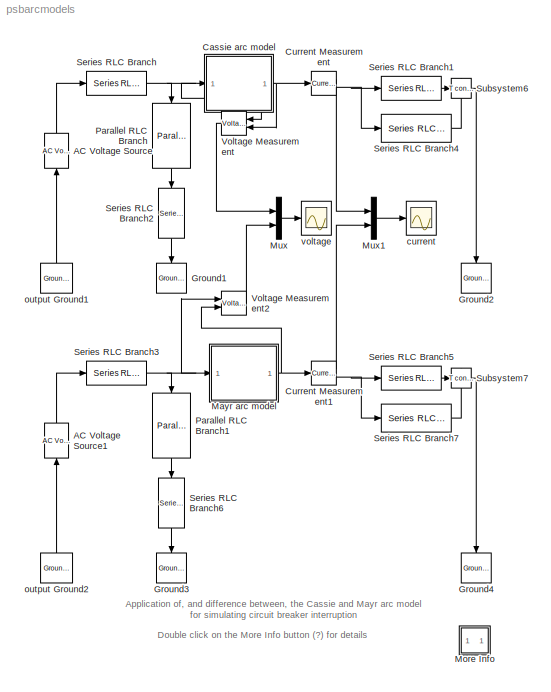
MODEL psbarcmodels
KIND model
BLOCK [Reference] AC Voltage Source  REF=powerlib2/Electrical\nSources/AC Voltage Source
  A = 59196
  F = 60
  P = 90
  PSBOutputType = 1
  Ports = [1, 1]
  SourceBlock = powerlib2/Electrical\nSources/AC Voltage Source
  SourceType = AC Voltage Source
  Tag = PoWeRsYsTeMbLoCk
  mesure = None
  stime = 0
BLOCK [Reference] AC Voltage Source1  REF=powerlib2/Electrical\nSources/AC Voltage Source
  A = 59196
  F = 60
  P = 90
  PSBOutputType = 1
  Ports = [1, 1]
  SourceBlock = powerlib2/Electrical\nSources/AC Voltage Source
  SourceType = AC Voltage Source
  Tag = PoWeRsYsTeMbLoCk
  mesure = None
  stime = 0
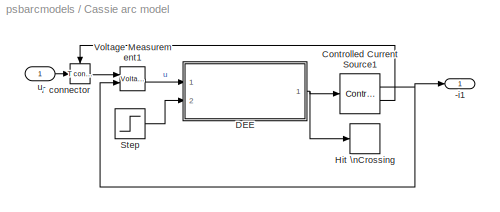
BLOCK [SubSystem] Cassie arc model
  AncestorBlock = arc_model/Cassie arc model
  MaskCallbackString = |||
  MaskDescription = The Cassie arc model with a constant time parameter tau and a constant arc voltage Uc: dlng/dt=1/tau*((u^2/Uc^2)-1.
  MaskDisplay = plot(-15,10,115,90,[-15,15],[50,50],[85,115],[50,50],[15,15,25,25,15],[55,45,45,55,55],[75,75,85,85,75],[55,45,45,55,55],[25,75],[50,70])
  MaskEnableString = on,on,on,on
  MaskHelp = The Cassie arc model with a constant time parameter tau and a constant arc voltage Uc: dlng/dt=1/tau*((u^2/Uc^2)-1.\n\nThe initial conductance of the arc g(0) can be altered. Furthermore, the time at which the contact separation of the circuit breaker takes place can be specified. Until that time the arc model behaves as a conductance with the value g(0).
  MaskIconFrame = off
  MaskIconOpaque = on
  MaskIconRotate = port
  MaskIconUnits = autoscale
  MaskPromptString = tau [s]|Uc [V]|g(0) [S]|circuit breaker contact separation starts at [s]
  MaskStyleString = edit,edit,edit,edit
  MaskTabNameString = ,,,
  MaskToolTipString = on,on,on,on
  MaskTunableValueString = on,on,on,on
  MaskType = Cassie arc model
  MaskValueString = 1.2e-6|3850|1.e4|.02
  MaskVarAliasString = ,,,
  MaskVariables = tau=@1;Uc=@2;x0=@3;cb_trip=@4;
  MaskVisibilityString = on,on,on,on
  MinAlgLoopOccurrences = off
  Ports = [1, 1]
  RTWSystemCode = Auto
  TreatAsAtomicUnit = off
BLOCK [Outport] Cassie arc model/-i1
  IconDisplay = Port number
BLOCK [Reference] Cassie arc model/Controlled Current Source1  REF=powerlib2/Electrical\nSources/Controlled Current Source
  PSBOutputType = 11
  Ports = [1, 2]
  SourceBlock = powerlib2/Electrical\nSources/Controlled Current Source
  SourceType = Controlled Current Source
  Tag = PoWeRsYsTeMbLoCk
  freq = 0
  ia = 0
  initsrc = on
  iph = 0
  mesure = None
  srctyp = AC
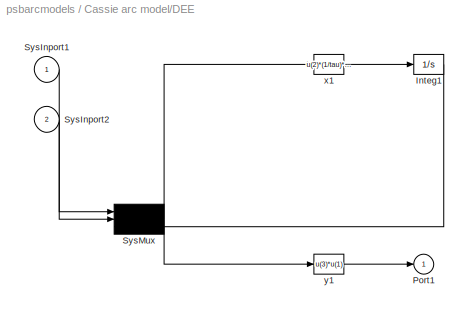
BLOCK [SubSystem] Cassie arc model/DEE
  MaskDisplay = disp('Cassie arc model')
  MaskIconFrame = on
  MaskIconOpaque = on
  MaskIconRotate = none
  MaskIconUnits = autoscale
  MaskType = Differential Equation Editor (DEE)
  MinAlgLoopOccurrences = off
  OpenFcn = diffeqed
  Ports = [2, 1]
  RTWSystemCode = Auto
  TreatAsAtomicUnit = off
BLOCK [Integrator] Cassie arc model/DEE/Integ1
  InitialCondition = x0
  Ports = [1, 1]
  ZeroCross = off
BLOCK [Outport] Cassie arc model/DEE/Port1
  IconDisplay = Port number
  InitialOutput = 0
BLOCK [Inport] Cassie arc model/DEE/SysInport1
  IconDisplay = Port number
  LatchInput = off
  Port = 1
BLOCK [Inport] Cassie arc model/DEE/SysInport2
  IconDisplay = Port number
  LatchInput = off
  Port = 2
BLOCK [Mux] Cassie arc model/DEE/SysMux
  Inputs = 3
  Ports = [3, 1]
BLOCK [Fcn] Cassie arc model/DEE/x1
  Expr = u(2)*(1/tau)*((u(3)*u(1)^2)/(Uc^2)-u(3))
BLOCK [Fcn] Cassie arc model/DEE/y1
  Expr = u(3)*u(1)
BLOCK [HitCross] Cassie arc model/Hit \nCrossing
  HitCrossingDirection = either
  Ports = [1]
  ShowOutputPort = off
  ZeroCross = off
BLOCK [Step] Cassie arc model/Step
  SampleTime = 0
  Time = cb_trip
  ZeroCross = off
BLOCK [Reference] Cassie arc model/T connector  REF=powerlib2/Connectors/T connector
  PSBOutputType = 1
  Ports = [1, 1, 1]
  SourceBlock = powerlib2/Connectors/T connector
  SourceType = Bus Bar
  Tag = PoWeRsYsTeMbLoCk
BLOCK [Reference] Cassie arc model/Voltage Measurement1  REF=powerlib2/Measurements/Voltage Measurement
  OutputType = Magnitude
  PSBOutputType = 0
  PSBequivalent = 0
  PhasorSimulation = off
  Ports = [2, 1]
  SourceBlock = powerlib2/Measurements/Voltage Measurement
  SourceType = Voltage Measurement
  Tag = PoWeRsYsTeMmEaSuReMeNt
BLOCK [Inport] Cassie arc model/u
  IconDisplay = Port number
  LatchInput = off
  Port = 1
BLOCK [Reference] Current Measurement  REF=powerlib2/Measurements/Current Measurement
  OutputType = Magnitude
  PSBOutputType = 01
  PSBequivalent = 0
  PhasorSimulation = off
  Ports = [1, 2]
  SourceBlock = powerlib2/Measurements/Current Measurement
  SourceType = Current Measurement
  Tag = PoWeRsYsTeMmEaSuReMeNt
BLOCK [Reference] Current Measurement1  REF=powerlib2/Measurements/Current Measurement
  OutputType = Magnitude
  PSBOutputType = 01
  PSBequivalent = 0
  PhasorSimulation = off
  Ports = [1, 2]
  SourceBlock = powerlib2/Measurements/Current Measurement
  SourceType = Current Measurement
  Tag = PoWeRsYsTeMmEaSuReMeNt
BLOCK [Reference] Ground1  REF=powerlib2/Connectors/Ground (input)
  Ports = [1]
  SourceBlock = powerlib2/Connectors/Ground (input)
  SourceType = Ground
  Tag = PoWeRsYsTeMbLoCk
BLOCK [Reference] Ground2  REF=powerlib2/Connectors/Ground (input)
  Ports = [1]
  SourceBlock = powerlib2/Connectors/Ground (input)
  SourceType = Ground
  Tag = PoWeRsYsTeMbLoCk
BLOCK [Reference] Ground3  REF=powerlib2/Connectors/Ground (input)
  Ports = [1]
  SourceBlock = powerlib2/Connectors/Ground (input)
  SourceType = Ground
  Tag = PoWeRsYsTeMbLoCk
BLOCK [Reference] Ground4  REF=powerlib2/Connectors/Ground (input)
  Ports = [1]
  SourceBlock = powerlib2/Connectors/Ground (input)
  SourceType = Ground
  Tag = PoWeRsYsTeMbLoCk
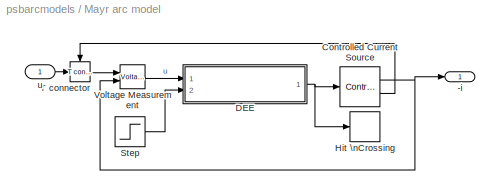
BLOCK [SubSystem] Mayr arc model
  AncestorBlock = arc_model/Mayr arc model
  MaskCallbackString = |||
  MaskDescription = The Mayr arc model with a constant time parameter tau and constant cooling power P: dlng/dt=1/tau*((ui/P)-1).
  MaskDisplay = plot(-15,10,115,90,[-15,15],[50,50],[85,115],[50,50],[15,15,25,25,15],[55,45,45,55,55],[75,75,85,85,75],[55,45,45,55,55],[25,75],[50,70])
  MaskEnableString = on,on,on,on
  MaskHelp = The Mayr arc model with a constant time parameter tau and constant cooling power P: dlng/dt=1/tau*((ui/P)-1).\n\nThe initial conductance of the arc g(0) can be altered. Furthermore, the time at which the contact separation of the circuit breaker takes place can be specified. Until that time the arc model behaves as a conductance with the value g(0).
  MaskIconFrame = off
  MaskIconOpaque = on
  MaskIconRotate = port
  MaskIconUnits = autoscale
  MaskPromptString = tau [s]|P [W]|g(0) [S]|circuit breaker contact separation starts at [s]
  MaskStyleString = edit,edit,edit,edit
  MaskTabNameString = ,,,
  MaskToolTipString = on,on,on,on
  MaskTunableValueString = on,on,on,on
  MaskType = Mayr arc model
  MaskValueString = 0.3e-6|30900|1.e4|.02
  MaskVarAliasString = ,,,
  MaskVariables = tau=@1;P=@2;x0=@3;cb_trip=@4;
  MaskVisibilityString = on,on,on,on
  MinAlgLoopOccurrences = off
  Ports = [1, 1]
  RTWSystemCode = Auto
  TreatAsAtomicUnit = off
BLOCK [Outport] Mayr arc model/-i
  IconDisplay = Port number
BLOCK [Reference] Mayr arc model/Controlled Current Source  REF=powerlib2/Electrical\nSources/Controlled Current Source
  PSBOutputType = 11
  Ports = [1, 2]
  SourceBlock = powerlib2/Electrical\nSources/Controlled Current Source
  SourceType = Controlled Current Source
  Tag = PoWeRsYsTeMbLoCk
  freq = 0
  ia = 0
  initsrc = on
  iph = 0
  mesure = None
  srctyp = AC
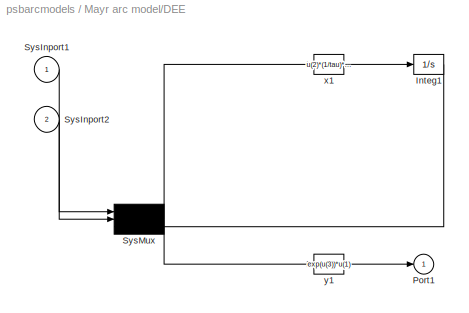
BLOCK [SubSystem] Mayr arc model/DEE
  MaskDisplay = disp('Mayr arc model')
  MaskIconFrame = on
  MaskIconOpaque = on
  MaskIconRotate = none
  MaskIconUnits = autoscale
  MaskType = Differential Equation Editor (DEE)
  MinAlgLoopOccurrences = off
  OpenFcn = diffeqed
  Ports = [2, 1]
  RTWSystemCode = Auto
  TreatAsAtomicUnit = off
BLOCK [Integrator] Mayr arc model/DEE/Integ1
  InitialCondition = log(x0)
  Ports = [1, 1]
  ZeroCross = off
BLOCK [Outport] Mayr arc model/DEE/Port1
  IconDisplay = Port number
  InitialOutput = 0
BLOCK [Inport] Mayr arc model/DEE/SysInport1
  IconDisplay = Port number
  LatchInput = off
  Port = 1
BLOCK [Inport] Mayr arc model/DEE/SysInport2
  IconDisplay = Port number
  LatchInput = off
  Port = 2
BLOCK [Mux] Mayr arc model/DEE/SysMux
  Inputs = 3
  Ports = [3, 1]
BLOCK [Fcn] Mayr arc model/DEE/x1
  Expr = u(2)*(1/tau)*((exp(u(3))*u(1)^2)/P-1)
BLOCK [Fcn] Mayr arc model/DEE/y1
  Expr = exp(u(3))*u(1)
BLOCK [HitCross] Mayr arc model/Hit \nCrossing
  HitCrossingDirection = either
  Ports = [1]
  ShowOutputPort = off
  ZeroCross = off
BLOCK [Step] Mayr arc model/Step
  SampleTime = 0
  Time = cb_trip
  ZeroCross = off
BLOCK [Reference] Mayr arc model/T connector  REF=powerlib2/Connectors/T connector
  PSBOutputType = 1
  Ports = [1, 1, 1]
  SourceBlock = powerlib2/Connectors/T connector
  SourceType = Bus Bar
  Tag = PoWeRsYsTeMbLoCk
BLOCK [Reference] Mayr arc model/Voltage Measurement  REF=powerlib2/Measurements/Voltage Measurement
  OutputType = Magnitude
  PSBOutputType = 0
  PSBequivalent = 0
  PhasorSimulation = off
  Ports = [2, 1]
  SourceBlock = powerlib2/Measurements/Voltage Measurement
  SourceType = Voltage Measurement
  Tag = PoWeRsYsTeMmEaSuReMeNt
BLOCK [Inport] Mayr arc model/u
  IconDisplay = Port number
  LatchInput = off
  Port = 1
BLOCK [SubSystem] More Info
  MaskDisplay = disp('?')
  MaskIconFrame = on
  MaskIconOpaque = on
  MaskIconRotate = none
  MaskIconUnits = autoscale
  MinAlgLoopOccurrences = off
  Ports = []
  RTWSystemCode = Auto
  TreatAsAtomicUnit = off
BLOCK [Mux] Mux
  DisplayOption = bar
  Inputs = 2
  Ports = [2, 1]
BLOCK [Mux] Mux1
  DisplayOption = bar
  Inputs = 2
  Ports = [2, 1]
BLOCK [Reference] Parallel RLC Branch  REF=powerlib2/Elements/Parallel RLC Branch
  PSBOutputType = 1
  Ports = [1, 1]
  SourceBlock = powerlib2/Elements/Parallel RLC Branch
  SourceType = Parallel RLC Branch
  Tag = PoWeRsYsTeMbLoCk
  a = 29.8
  b = 5.28e-3
  c = 0
  mesure = None
BLOCK [Reference] Parallel RLC Branch1  REF=powerlib2/Elements/Parallel RLC Branch
  PSBOutputType = 1
  Ports = [1, 1]
  SourceBlock = powerlib2/Elements/Parallel RLC Branch
  SourceType = Parallel RLC Branch
  Tag = PoWeRsYsTeMbLoCk
  a = 29.8
  b = 5.28e-3
  c = 0
  mesure = None
BLOCK [Reference] Series RLC Branch  REF=powerlib2/Elements/Series RLC Branch
  PSBOutputType = 1
  Ports = [1, 1]
  SourceBlock = powerlib2/Elements/Series RLC Branch
  SourceType = Series RLC Branch
  Tag = PoWeRsYsTeMbLoCk
  a = 0
  b = 3.52e-03
  c = inf
  mesure = None
BLOCK [Reference] Series RLC Branch1  REF=powerlib2/Elements/Series RLC Branch
  PSBOutputType = 1
  Ports = [1, 1]
  SourceBlock = powerlib2/Elements/Series RLC Branch
  SourceType = Series RLC Branch
  Tag = PoWeRsYsTeMbLoCk
  a = 0
  b = 6.256e-4
  c = inf
  mesure = None
BLOCK [Reference] Series RLC Branch2  REF=powerlib2/Elements/Series RLC Branch
  PSBOutputType = 1
  Ports = [1, 1]
  SourceBlock = powerlib2/Elements/Series RLC Branch
  SourceType = Series RLC Branch
  Tag = PoWeRsYsTeMbLoCk
  a = 0
  b = 0
  c = 1.98e-6
  mesure = None
BLOCK [Reference] Series RLC Branch3  REF=powerlib2/Elements/Series RLC Branch
  PSBOutputType = 1
  Ports = [1, 1]
  SourceBlock = powerlib2/Elements/Series RLC Branch
  SourceType = Series RLC Branch
  Tag = PoWeRsYsTeMbLoCk
  a = 0
  b = 3.52e-03
  c = inf
  mesure = None
BLOCK [Reference] Series RLC Branch4  REF=powerlib2/Elements/Series RLC Branch
  PSBOutputType = 1
  Ports = [1, 1]
  SourceBlock = powerlib2/Elements/Series RLC Branch
  SourceType = Series RLC Branch
  Tag = PoWeRsYsTeMbLoCk
  a = 450
  b = 0
  c = 1.93e-9
  mesure = None
BLOCK [Reference] Series RLC Branch5  REF=powerlib2/Elements/Series RLC Branch
  PSBOutputType = 1
  Ports = [1, 1]
  SourceBlock = powerlib2/Elements/Series RLC Branch
  SourceType = Series RLC Branch
  Tag = PoWeRsYsTeMbLoCk
  a = 0
  b = 6.256e-4
  c = inf
  mesure = None
BLOCK [Reference] Series RLC Branch6  REF=powerlib2/Elements/Series RLC Branch
  PSBOutputType = 1
  Ports = [1, 1]
  SourceBlock = powerlib2/Elements/Series RLC Branch
  SourceType = Series RLC Branch
  Tag = PoWeRsYsTeMbLoCk
  a = 0
  b = 0
  c = 1.98e-6
  mesure = None
BLOCK [Reference] Series RLC Branch7  REF=powerlib2/Elements/Series RLC Branch
  PSBOutputType = 1
  Ports = [1, 1]
  SourceBlock = powerlib2/Elements/Series RLC Branch
  SourceType = Series RLC Branch
  Tag = PoWeRsYsTeMbLoCk
  a = 450
  b = 0
  c = 1.93e-9
  mesure = None
BLOCK [Reference] Subsystem6  REF=powerlib2/Connectors/T connector
  PSBOutputType = 1
  Ports = [1, 1, 1]
  SourceBlock = powerlib2/Connectors/T connector
  SourceType = Bus Bar
  Tag = PoWeRsYsTeMbLoCk
BLOCK [Reference] Subsystem7  REF=powerlib2/Connectors/T connector
  PSBOutputType = 1
  Ports = [1, 1, 1]
  SourceBlock = powerlib2/Connectors/T connector
  SourceType = Bus Bar
  Tag = PoWeRsYsTeMbLoCk
BLOCK [Reference] Voltage Measurement  REF=powerlib2/Measurements/Voltage Measurement
  OutputType = Magnitude
  PSBOutputType = 0
  PSBequivalent = 0
  PhasorSimulation = off
  Ports = [2, 1]
  SourceBlock = powerlib2/Measurements/Voltage Measurement
  SourceType = Voltage Measurement
  Tag = PoWeRsYsTeMmEaSuReMeNt
BLOCK [Reference] Voltage Measurement2  REF=powerlib2/Measurements/Voltage Measurement
  OutputType = Magnitude
  PSBOutputType = 0
  PSBequivalent = 0
  PhasorSimulation = off
  Ports = [2, 1]
  SourceBlock = powerlib2/Measurements/Voltage Measurement
  SourceType = Voltage Measurement
  Tag = PoWeRsYsTeMmEaSuReMeNt
BLOCK [Scope] current
  DataFormat = StructureWithTime
  LimitDataPoints = off
  NumInputPorts = 1
  Ports = [1]
  TimeRange = 0.04
  YMax = 40000
  YMin = -40000
  ZoomMode = xonly
BLOCK [Reference] output Ground1  REF=powerlib2/Connectors/Ground (output)
  PSBOutputType = 1
  Ports = [0, 1]
  SourceBlock = powerlib2/Connectors/Ground (output)
  SourceType = Ground
  Tag = PoWeRsYsTeMbLoCk
BLOCK [Reference] output Ground2  REF=powerlib2/Connectors/Ground (output)
  PSBOutputType = 1
  Ports = [0, 1]
  SourceBlock = powerlib2/Connectors/Ground (output)
  SourceType = Ground
  Tag = PoWeRsYsTeMbLoCk
BLOCK [Scope] voltage
  DataFormat = StructureWithTime
  LimitDataPoints = off
  NumInputPorts = 1
  Ports = [1]
  TimeRange = 0.04
  YMax = 60000
  YMin = -100000
  ZoomMode = yonly
ANNOTATION (root): Application of, and difference between, the Cassie and Mayr arc model\nfor simulating circuit breaker interruption
ANNOTATION (root): Double click on the More Info button (?) for details
ANNOTATION More Info: A blockset containing 7 arc models can be downloaded freely from the following website of the\nPower Systems Laboratory of the Delft University of Technology: eps.et.tudelft.nl\nA PDF manual with installation instructions, arc model descriptions and references to relevant\nliterature is included.
ANNOTATION More Info: Arc Model Blockset: eps.et.tudelft.nl
ANNOTATION More Info: Circuit Description
ANNOTATION More Info: Demonstration
ANNOTATION More Info: P.H. Schavemaker, Power Systems Laboratory,\nDelft University of Technology, the Netherlands\n\<email>
ANNOTATION More Info: The circuit breaker interruption can be started by means of the 'Start/Pause Simulation' button.\nThe voltages over both the Cassie (yellow) and Mayr arc model are displayed in one scope.\nThe currents through both the Cassie (yellow) and Mayr arc model are displayed in one scope.\n\nThe following observations become clear from the simulation:\nThe arc behaves as a non-linear resistance; therefore...<+986ch>
ANNOTATION More Info: This demonstration illustrates use of the Cassie and Mayr arc model\nfor simulating high voltage circuit breaker interruption
ANNOTATION More Info: Two identical circuits are displayed: one with a Cassie and one with a Mayr arc model.\nThe circuit is a simple representation of a circuit breaker interrupting a short-line fault.\nAt the source side of the circuit breaker a circuit is present for reproducing a (2-parameter\nIEC) transient recovery voltage, while the RLC circuit at the line side represents a short\ntransmission line that is short...<+114ch>
LINE AC Voltage Source1:1 -> Series RLC Branch3:1
LINE AC Voltage Source:1 -> Series RLC Branch:1
NET Cassie arc model/Controlled Current Source1:1 -> Cassie arc model/-i1:1, Cassie arc model/Voltage Measurement1:2
LINE Cassie arc model/Controlled Current Source1:2 -> Cassie arc model/T connector:enable
LINE Cassie arc model/DEE/Integ1:1 -> Cassie arc model/DEE/SysMux:3
LINE Cassie arc model/DEE/SysInport1:1 -> Cassie arc model/DEE/SysMux:1
LINE Cassie arc model/DEE/SysInport2:1 -> Cassie arc model/DEE/SysMux:2
NET Cassie arc model/DEE/SysMux:1 -> Cassie arc model/DEE/x1:1, Cassie arc model/DEE/y1:1
LINE Cassie arc model/DEE/x1:1 -> Cassie arc model/DEE/Integ1:1
LINE Cassie arc model/DEE/y1:1 -> Cassie arc model/DEE/Port1:1
NET Cassie arc model/DEE:1 -> Cassie arc model/Controlled Current Source1:1, Cassie arc model/Hit \nCrossing:1
LINE Cassie arc model/Step:1 -> Cassie arc model/DEE:2
LINE Cassie arc model/T connector:1 -> Cassie arc model/Voltage Measurement1:1
LINE Cassie arc model/Voltage Measurement1:1 -> Cassie arc model/DEE:1
LINE Cassie arc model/u:1 -> Cassie arc model/T connector:1
NET Cassie arc model:1 -> Current Measurement:1, Voltage Measurement:2
LINE Current Measurement1:1 -> Mux1:2
NET Current Measurement1:2 -> Series RLC Branch5:1, Series RLC Branch7:1
LINE Current Measurement:1 -> Mux1:1
NET Current Measurement:2 -> Series RLC Branch1:1, Series RLC Branch4:1
NET Mayr arc model/Controlled Current Source:1 -> Mayr arc model/-i:1, Mayr arc model/Voltage Measurement:2
LINE Mayr arc model/Controlled Current Source:2 -> Mayr arc model/T connector:enable
LINE Mayr arc model/DEE/Integ1:1 -> Mayr arc model/DEE/SysMux:3
LINE Mayr arc model/DEE/SysInport1:1 -> Mayr arc model/DEE/SysMux:1
LINE Mayr arc model/DEE/SysInport2:1 -> Mayr arc model/DEE/SysMux:2
NET Mayr arc model/DEE/SysMux:1 -> Mayr arc model/DEE/x1:1, Mayr arc model/DEE/y1:1
LINE Mayr arc model/DEE/x1:1 -> Mayr arc model/DEE/Integ1:1
LINE Mayr arc model/DEE/y1:1 -> Mayr arc model/DEE/Port1:1
NET Mayr arc model/DEE:1 -> Mayr arc model/Controlled Current Source:1, Mayr arc model/Hit \nCrossing:1
LINE Mayr arc model/Step:1 -> Mayr arc model/DEE:2
LINE Mayr arc model/T connector:1 -> Mayr arc model/Voltage Measurement:1
LINE Mayr arc model/Voltage Measurement:1 -> Mayr arc model/DEE:1
LINE Mayr arc model/u:1 -> Mayr arc model/T connector:1
NET Mayr arc model:1 -> Current Measurement1:1, Voltage Measurement2:2
LINE Mux1:1 -> current:1
LINE Mux:1 -> voltage:1
LINE Parallel RLC Branch1:1 -> Series RLC Branch6:1
LINE Parallel RLC Branch:1 -> Series RLC Branch2:1
LINE Series RLC Branch1:1 -> Subsystem6:1
LINE Series RLC Branch2:1 -> Ground1:1
NET Series RLC Branch3:1 -> Mayr arc model:1, Parallel RLC Branch1:1, Voltage Measurement2:1
LINE Series RLC Branch4:1 -> Subsystem6:enable
LINE Series RLC Branch5:1 -> Subsystem7:1
LINE Series RLC Branch6:1 -> Ground3:1
LINE Series RLC Branch7:1 -> Subsystem7:enable
NET Series RLC Branch:1 -> Cassie arc model:1, Parallel RLC Branch:1, Voltage Measurement:1
LINE Subsystem6:1 -> Ground2:1
LINE Subsystem7:1 -> Ground4:1
LINE Voltage Measurement2:1 -> Mux:2
LINE Voltage Measurement:1 -> Mux:1
LINE output Ground1:1 -> AC Voltage Source:1
LINE output Ground2:1 -> AC Voltage Source1:1
note: NET lines group one-source signal fan-out (src -> all destinations, sorted); 1:1 wires keep LINE
